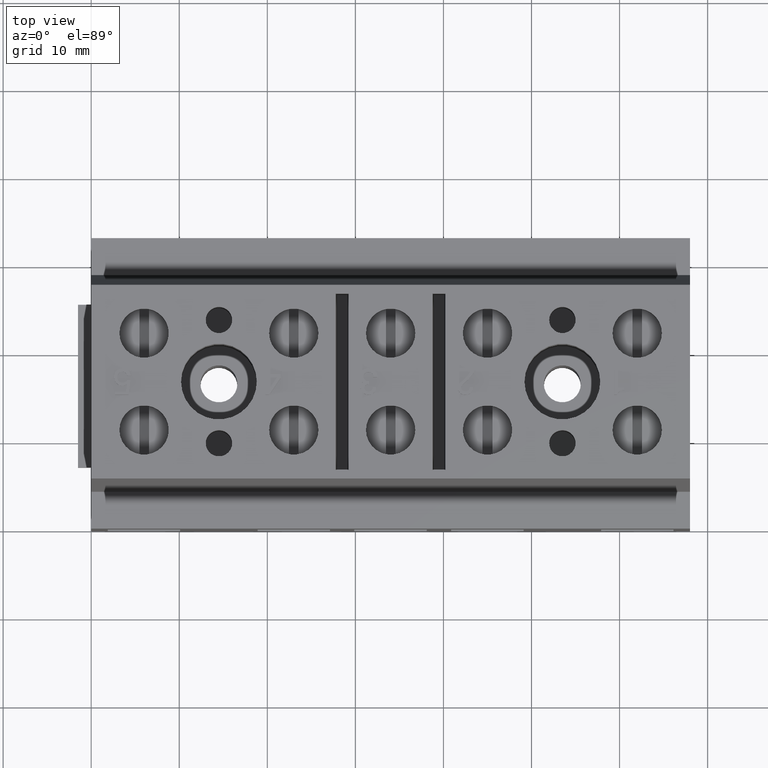
[diagram: clean part render]
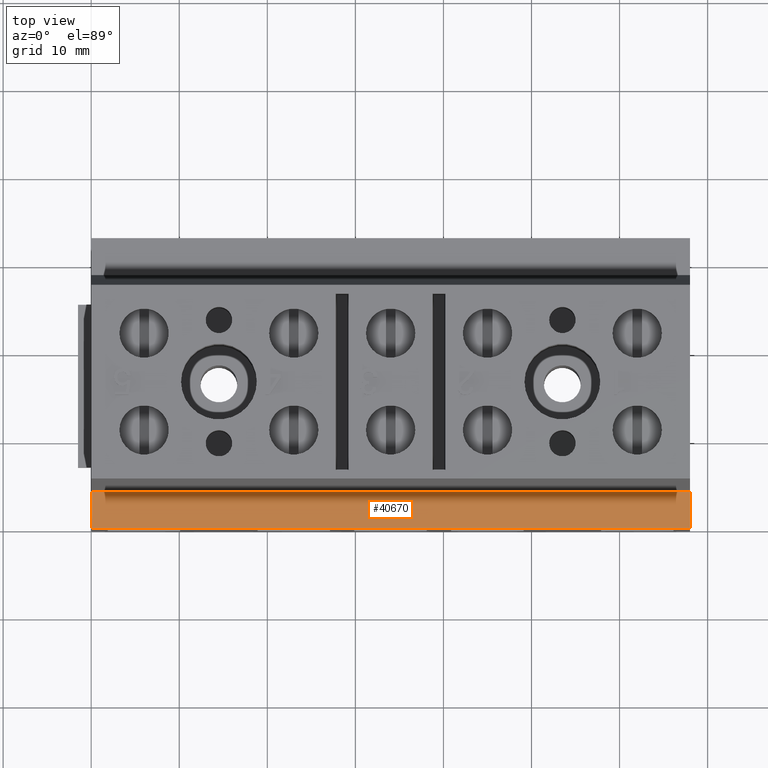
[diagram: same view with one face highlighted and labeled with its STEP entity id]
A machine part, top view. The second image highlights one B-rep face of the part: STEP entity #40670.
In plain terms, the highlighted planar face has unit normal (0, 0, -1).
Its self-contained STEP definition (entity closure, byte-faithful):
#40280=CARTESIAN_POINT('',(59.2713182031141,-20.9158790304453,
-7.105427357601E-15));
#40290=DIRECTION('',(-1.,0.,0.));
#40300=DIRECTION('',(0.,-1.,0.));
#40310=AXIS2_PLACEMENT_3D('',#40280,#40290,#40300);
#40320=PLANE('',#40310);
#40330=CARTESIAN_POINT('',(59.2713182031141,-4.41587903044529,29.));
#40340=DIRECTION('',(0.,-1.,0.));
#40350=VECTOR('',#40340,1.);
#40360=LINE('',#40330,#40350);
#40370=CARTESIAN_POINT('',(59.2713182031141,-16.7158790304453,29.));
#40380=VERTEX_POINT('',#40370);
#40390=CARTESIAN_POINT('',(59.2713182031141,-20.9158790304453,29.));
#40400=VERTEX_POINT('',#40390);
#40410=EDGE_CURVE('',#40380,#40400,#40360,.T.);
#40420=ORIENTED_EDGE('',*,*,#40410,.T.);
#40430=CARTESIAN_POINT('',(59.2713182031141,-16.7158790304453,-29.));
#40440=DIRECTION('',(0.,0.,1.));
#40450=VECTOR('',#40440,1.);
#40460=LINE('',#40430,#40450);
#40470=CARTESIAN_POINT('',(59.2713182031141,-16.7158790304453,-39.));
#40480=VERTEX_POINT('',#40470);
#40490=EDGE_CURVE('',#40480,#40380,#40460,.T.);
#40500=ORIENTED_EDGE('',*,*,#40490,.T.);
#40510=CARTESIAN_POINT('',(59.2713182031141,-4.41587903044529,-39.));
#40520=DIRECTION('',(0.,1.,0.));
#40530=VECTOR('',#40520,1.);
#40540=LINE('',#40510,#40530);
#40550=CARTESIAN_POINT('',(59.2713182031141,-20.9158790304453,-39.));
#40560=VERTEX_POINT('',#40550);
#40570=EDGE_CURVE('',#40560,#40480,#40540,.T.);
#40580=ORIENTED_EDGE('',*,*,#40570,.T.);
#40590=CARTESIAN_POINT('',(59.2713182031141,-20.9158790304453,-29.));
#40600=DIRECTION('',(0.,0.,1.));
#40610=VECTOR('',#40600,1.);
#40620=LINE('',#40590,#40610);
#40630=EDGE_CURVE('',#40560,#40400,#40620,.T.);
#40640=ORIENTED_EDGE('',*,*,#40630,.F.);
#40650=EDGE_LOOP('',(#40640,#40580,#40500,#40420));
#40660=FACE_OUTER_BOUND('',#40650,.T.);
#40670=ADVANCED_FACE('',(#40660),#40320,.F.);